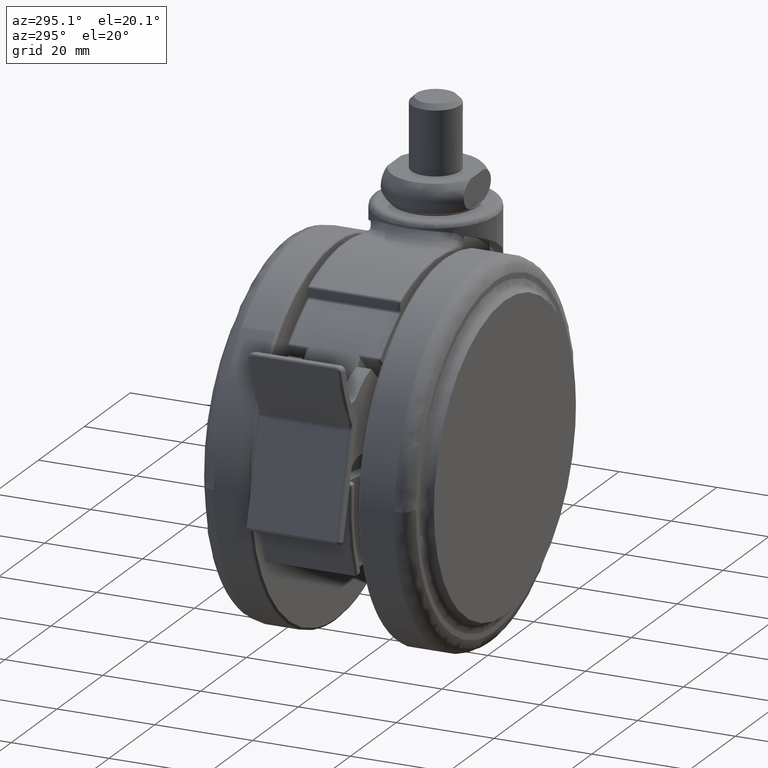
[diagram: clean part render]
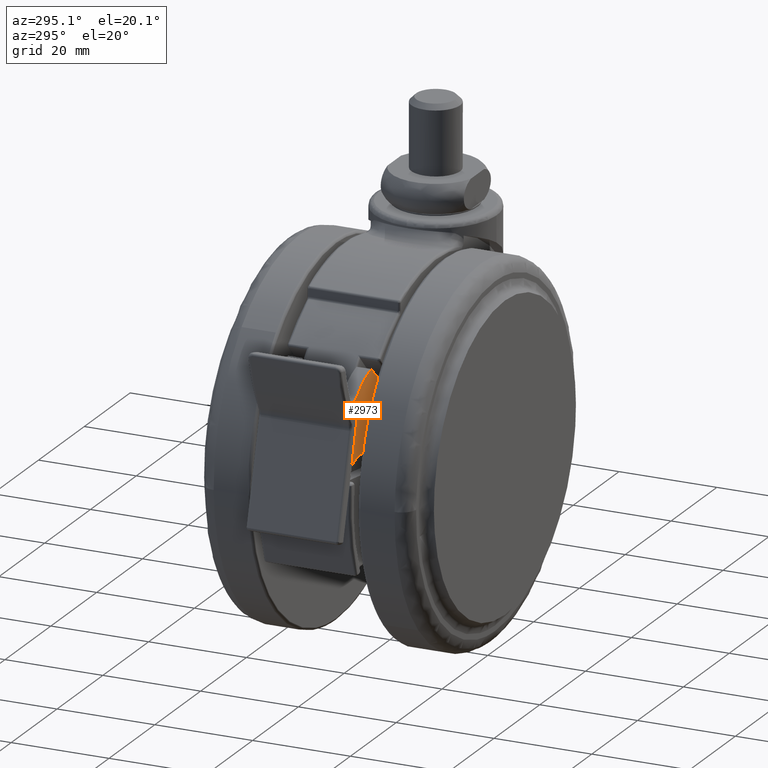
[diagram: same view with one face highlighted and labeled with its STEP entity id]
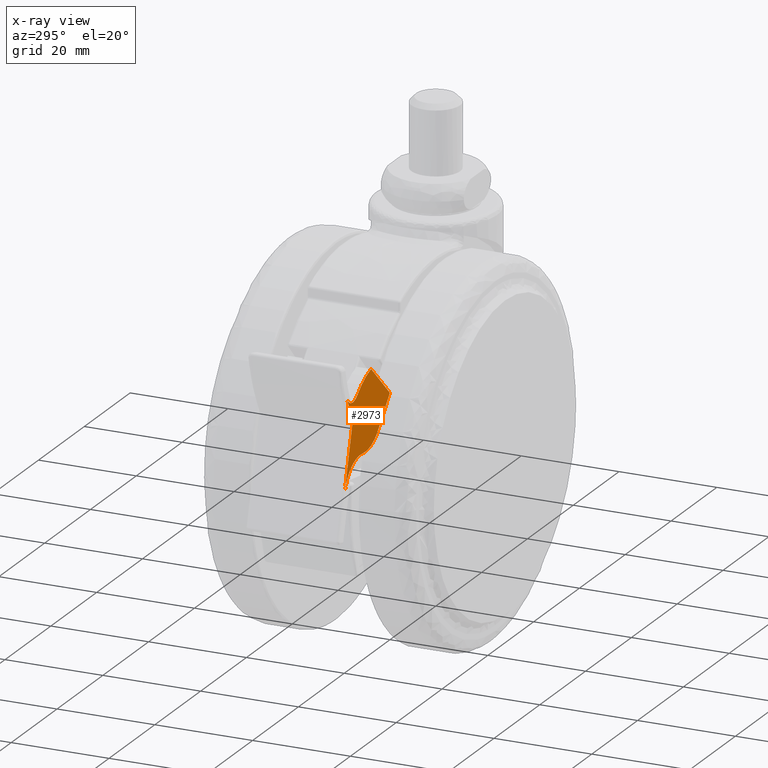
[diagram: x-ray of the same camera — body ghosted, the highlighted face saturated]
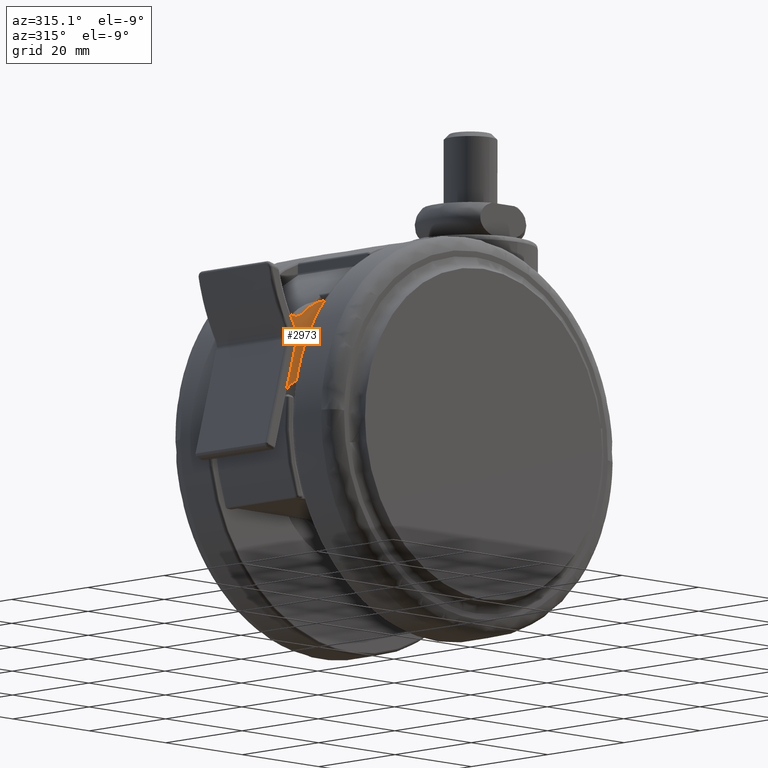
[diagram: same view with one face highlighted and labeled with its STEP entity id]
A machine part, auxiliary view. The second image highlights one B-rep face of the part: STEP entity #2973.
The next image is the same camera in x-ray: the body ghosted, the highlighted face saturated — about 0% of this face is hidden behind the body in this view.
A second angle (auxiliary view) of the same face is appended — the face is thin or edge-on in the first view.
In plain terms, the highlighted face is a freeform B-spline surface patch.
Its self-contained STEP definition (entity closure, byte-faithful):
#1864=CARTESIAN_POINT('',(-54.809719564065801,-8.499999933647249,-23.141380682948700));
#1865=VERTEX_POINT('',#1864);
#1871=CARTESIAN_POINT('',(-57.143482723769203,-8.499999933647249,-18.770296314899500));
#1872=VERTEX_POINT('',#1871);
#1873=CARTESIAN_POINT('',(-54.809719564065823,-8.499999933647249,-23.141380682948689));
#1874=CARTESIAN_POINT('',(-56.129502677667197,-8.499999933647249,-21.037474069524290));
#1875=CARTESIAN_POINT('',(-57.143482723769168,-8.499999933647249,-18.770296314899490));
#1883=(BOUNDED_CURVE()B_SPLINE_CURVE(2,(#1873,#1874,#1875),.UNSPECIFIED.,.F.,.U.)CURVE()GEOMETRIC_REPRESENTATION_ITEM()QUASI_UNIFORM_CURVE()RATIONAL_B_SPLINE_CURVE((1.0,0.997561714046328,1.0))REPRESENTATION_ITEM(''));
#1884=EDGE_CURVE('',#1865,#1872,#1883,.T.);
#2256=CARTESIAN_POINT('',(-54.573970159813712,-8.499999933647249,-24.728711978024851));
#2257=VERTEX_POINT('',#2256);
#2263=CARTESIAN_POINT('',(-54.809719564065837,-8.499999933647249,-23.141380682948729));
#2264=CARTESIAN_POINT('',(-54.344237477333010,-8.499999933647249,-23.883419909405763));
#2265=CARTESIAN_POINT('',(-54.573970159813747,-8.499999933647249,-24.728711978024840));
#2273=(BOUNDED_CURVE()B_SPLINE_CURVE(2,(#2263,#2264,#2265),.UNSPECIFIED.,.F.,.U.)CURVE()GEOMETRIC_REPRESENTATION_ITEM()QUASI_UNIFORM_CURVE()RATIONAL_B_SPLINE_CURVE((1.0,0.915996778722051,1.0))REPRESENTATION_ITEM(''));
#2274=EDGE_CURVE('',#1865,#2257,#2273,.T.);
#2697=CARTESIAN_POINT('',(-50.090405160977802,-8.499999933647249,-32.036481831512013));
#2698=VERTEX_POINT('',#2697);
#2699=CARTESIAN_POINT('',(-57.940162799155800,-8.499999933647249,-37.114480989007752));
#2700=VERTEX_POINT('',#2699);
#2701=CARTESIAN_POINT('',(-50.090405160977788,-8.499999933647249,-32.036481831511992));
#2702=CARTESIAN_POINT('',(-56.293132414079494,-8.499999933647249,-31.054299624101247));
#2703=CARTESIAN_POINT('',(-57.940162799155843,-8.499999933647249,-37.114480989007752));
#2711=(BOUNDED_CURVE()B_SPLINE_CURVE(2,(#2701,#2702,#2703),.UNSPECIFIED.,.F.,.U.)CURVE()GEOMETRIC_REPRESENTATION_ITEM()QUASI_UNIFORM_CURVE()RATIONAL_B_SPLINE_CURVE((1.0,0.744350249390050,1.0))REPRESENTATION_ITEM(''));
#2712=EDGE_CURVE('',#2698,#2700,#2711,.T.);
#2758=CARTESIAN_POINT('',(-43.321372906995052,-8.499999933647249,-29.649289048215099));
#2759=VERTEX_POINT('',#2758);
#2760=CARTESIAN_POINT('',(-50.090405160977802,-8.499999933647249,-32.036481831511978));
#2761=CARTESIAN_POINT('',(-46.059872958179767,-8.499999933647249,-32.674703835228904));
#2762=CARTESIAN_POINT('',(-43.321372906995052,-8.499999933647249,-29.649289048215099));
#2770=(BOUNDED_CURVE()B_SPLINE_CURVE(2,(#2760,#2761,#2762),.UNSPECIFIED.,.F.,.U.)CURVE()GEOMETRIC_REPRESENTATION_ITEM()QUASI_UNIFORM_CURVE()RATIONAL_B_SPLINE_CURVE((1.0,0.879450924119779,1.0))REPRESENTATION_ITEM(''));
#2771=EDGE_CURVE('',#2698,#2759,#2770,.T.);
#2802=CARTESIAN_POINT('',(-38.217238429136998,-8.499999933647249,-24.010390514129451));
#2803=VERTEX_POINT('',#2802);
#2804=CARTESIAN_POINT('',(-38.217238429136998,-8.499999933647249,-24.010390514129451));
#2805=CARTESIAN_POINT('',(-43.321372906995052,-8.499999933647249,-29.649289048215099));
#2806=QUASI_UNIFORM_CURVE('',1,(#2804,#2805),.UNSPECIFIED.,.F.,.U.);
#2807=EDGE_CURVE('',#2803,#2759,#2806,.T.);
#2830=CARTESIAN_POINT('',(-46.400452299266597,-8.499999933647249,-16.603230445237099));
#2831=VERTEX_POINT('',#2830);
#2832=CARTESIAN_POINT('',(-46.400452299266597,-8.499999933647249,-16.603230445237099));
#2833=CARTESIAN_POINT('',(-38.217238429136998,-8.499999933647249,-24.010390514129451));
#2834=QUASI_UNIFORM_CURVE('',1,(#2832,#2833),.UNSPECIFIED.,.F.,.U.);
#2835=EDGE_CURVE('',#2831,#2803,#2834,.T.);
#2867=CARTESIAN_POINT('',(-52.400876215452200,-8.499999933647249,-19.777945914420151));
#2868=VERTEX_POINT('',#2867);
#2869=CARTESIAN_POINT('',(-46.400452299266597,-8.499999933647249,-16.603230445237099));
#2870=CARTESIAN_POINT('',(-49.797349422764526,-8.499999933647249,-17.440826767570346));
#2871=CARTESIAN_POINT('',(-52.400876215452207,-8.499999933647249,-19.777945914420140));
#2879=(BOUNDED_CURVE()B_SPLINE_CURVE(2,(#2869,#2870,#2871),.UNSPECIFIED.,.F.,.U.)CURVE()GEOMETRIC_REPRESENTATION_ITEM()QUASI_UNIFORM_CURVE()RATIONAL_B_SPLINE_CURVE((1.0,0.970164681026353,1.0))REPRESENTATION_ITEM(''));
#2880=EDGE_CURVE('',#2831,#2868,#2879,.T.);
#2920=CARTESIAN_POINT('',(-57.143482723769203,-8.499999933647249,-18.770296314899500));
#2921=CARTESIAN_POINT('',(-57.053482565180303,-8.499999933647255,-18.971612834426580));
#2922=CARTESIAN_POINT('',(-56.821327663256007,-8.499999933647247,-19.367013552769919));
#2923=CARTESIAN_POINT('',(-56.363052589666722,-8.499999933647214,-19.850469455680120));
#2924=CARTESIAN_POINT('',(-55.737421658277192,-8.499999933647265,-20.270922959780389));
#2925=CARTESIAN_POINT('',(-55.062899258173807,-8.499999933647242,-20.505205851322849));
#2926=CARTESIAN_POINT('',(-54.327057821890278,-8.499999933647251,-20.567365042889680));
#2927=CARTESIAN_POINT('',(-53.695779866842948,-8.499999933647253,-20.485637285867270));
#2928=CARTESIAN_POINT('',(-53.015318538846628,-8.499999933647255,-20.237780186491339));
#2929=CARTESIAN_POINT('',(-52.608669573292012,-8.499999933647244,-19.964615607184420));
#2930=CARTESIAN_POINT('',(-52.400876215452200,-8.499999933647249,-19.777945914420151));
#2931=B_SPLINE_CURVE_WITH_KNOTS('',3,(#2920,#2921,#2922,#2923,#2924,#2925,#2926,#2927,#2928,#2929,#2930),.UNSPECIFIED.,.F.,.U.,(4,1,1,1,1,1,1,1,4),(0.000000224108650,0.661555924231592,1.367232040029867,1.984715591178017,2.910849034700647,3.484233765243382,4.189905699628659,4.807389121951346,5.645348692686011),.UNSPECIFIED.);
#2932=EDGE_CURVE('',#1872,#2868,#2931,.T.);
#2953=CARTESIAN_POINT('',(-58.925322833211389,-8.499999933647201,-38.139017913914323));
#2954=CARTESIAN_POINT('',(-37.232077866071357,-8.499999933647201,-38.139017913914323));
#2955=CARTESIAN_POINT('',(-58.925322833211389,-8.499999933647201,-15.578692970175929));
#2956=CARTESIAN_POINT('',(-37.232077866071357,-8.499999933647201,-15.578692970175929));
#2957=B_SPLINE_SURFACE_WITH_KNOTS('',1,1,((#2953,#2955),(#2954,#2956)),.UNSPECIFIED.,.F.,.F.,.U.,(2,2),(2,2),(0.0,21.693244967140028),(0.0,22.560324943738390),.UNSPECIFIED.);
#2958=CARTESIAN_POINT('',(-57.940162799155800,-8.499999933647249,-37.114480989007752));
#2959=CARTESIAN_POINT('',(-54.573970159813712,-8.499999933647249,-24.728711978024851));
#2960=QUASI_UNIFORM_CURVE('',1,(#2958,#2959),.UNSPECIFIED.,.F.,.U.);
#2961=EDGE_CURVE('',#2700,#2257,#2960,.T.);
#2962=ORIENTED_EDGE('',*,*,#2961,.F.);
#2963=ORIENTED_EDGE('',*,*,#2712,.F.);
#2964=ORIENTED_EDGE('',*,*,#2771,.T.);
#2965=ORIENTED_EDGE('',*,*,#2807,.F.);
#2966=ORIENTED_EDGE('',*,*,#2835,.F.);
#2967=ORIENTED_EDGE('',*,*,#2880,.T.);
#2968=ORIENTED_EDGE('',*,*,#2932,.F.);
#2969=ORIENTED_EDGE('',*,*,#1884,.F.);
#2970=ORIENTED_EDGE('',*,*,#2274,.T.);
#2971=EDGE_LOOP('',(#2962,#2963,#2964,#2965,#2966,#2967,#2968,#2969,#2970));
#2972=FACE_OUTER_BOUND('',#2971,.T.);
#2973=ADVANCED_FACE('',(#2972),#2957,.T.);